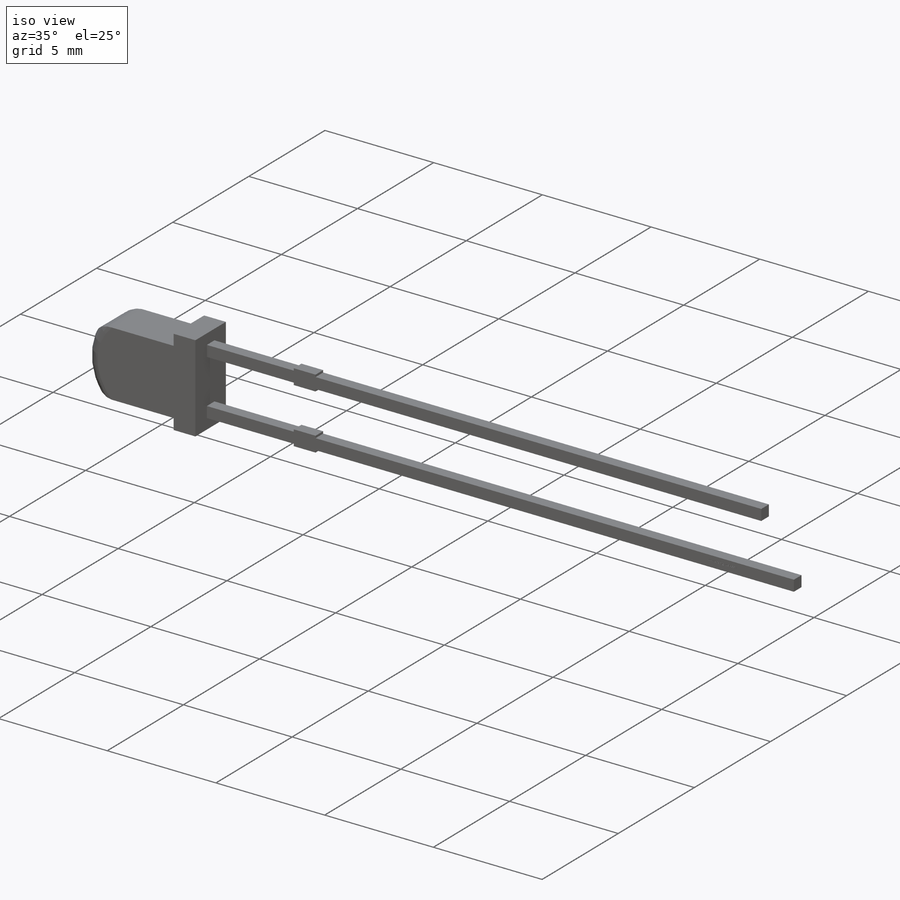
[diagram: iso view]
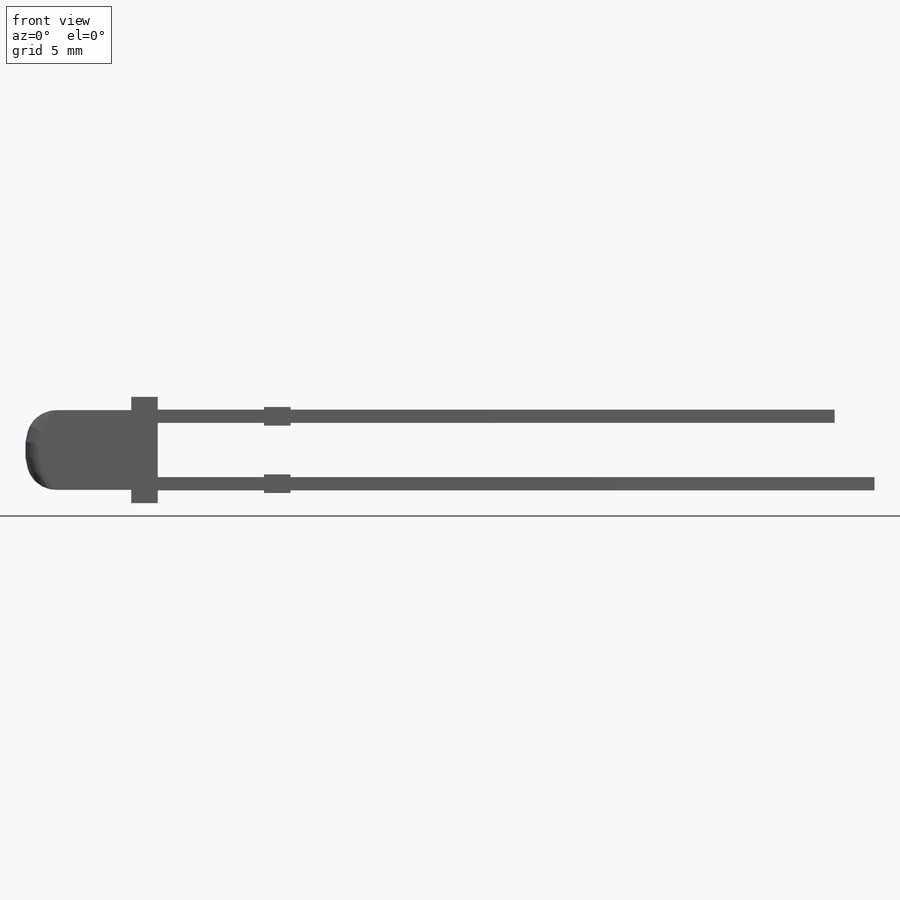
[diagram: front view]
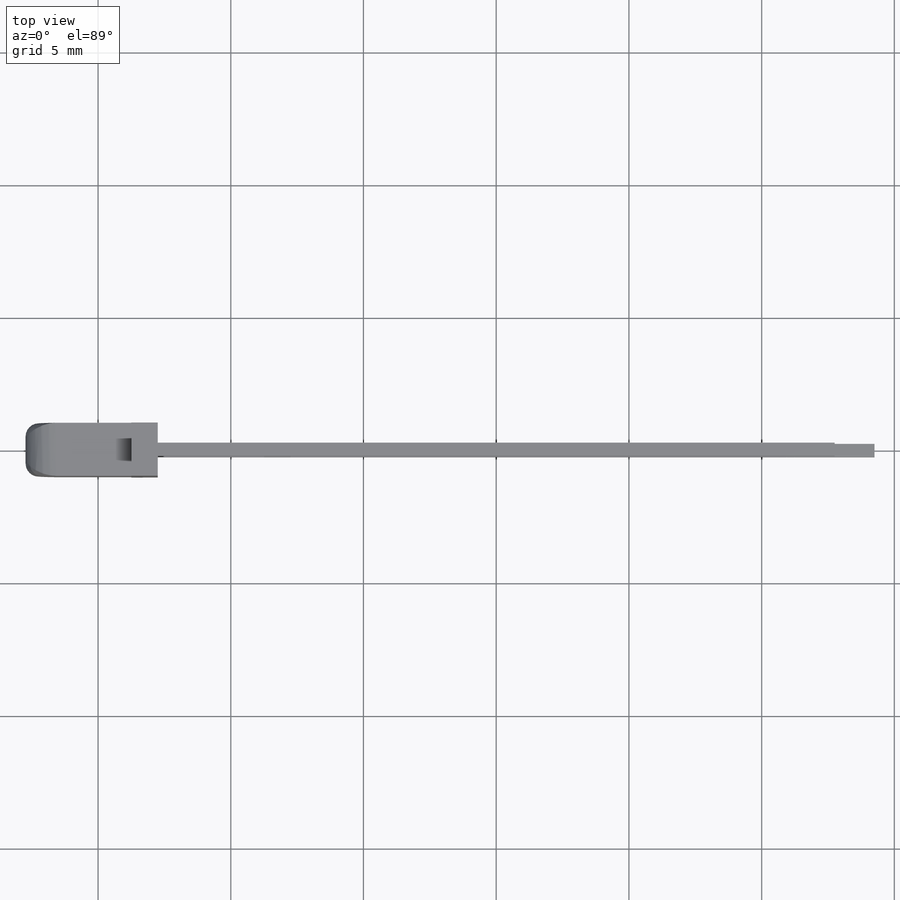
[diagram: top view]
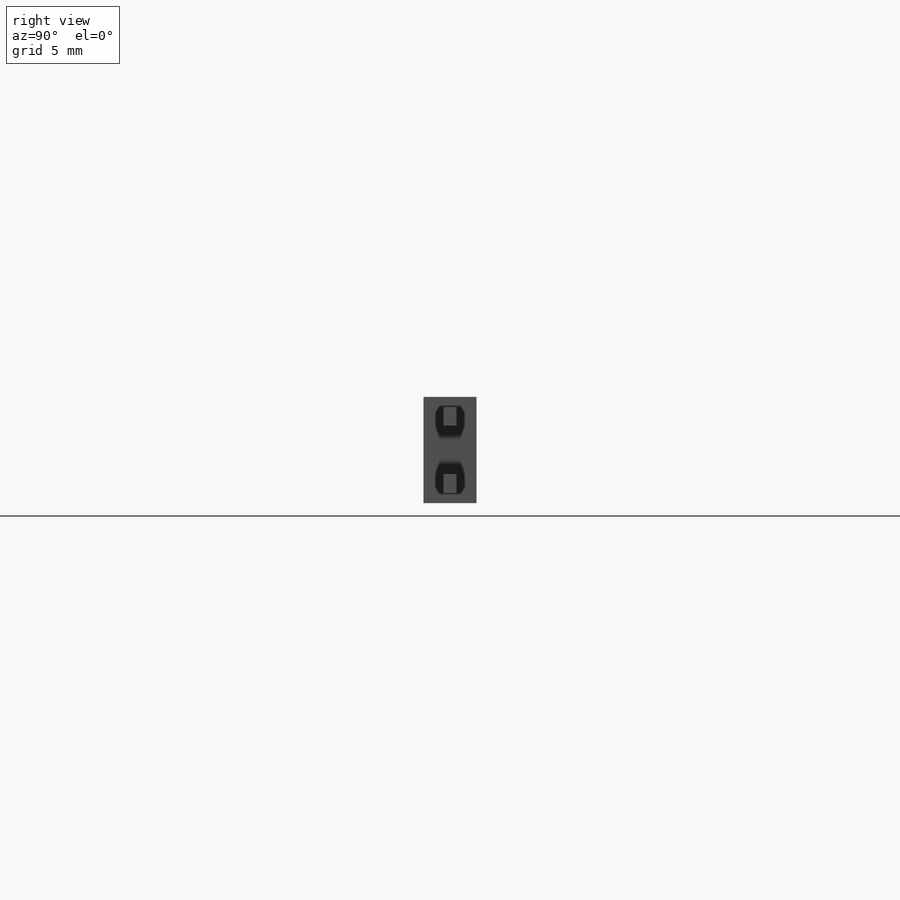
[diagram: right view]
SOLIDWORKS PART (.sldprt)
format: sldprt  version: not decoded by parser v0  size: 653,824 bytes
history: native  units: mm
features: sketch x3, extrude x2, fillet x2, material x1, cut_extrude x1 (+11 scaffold rows collapsed)
feature tree (20):
  scaffold x11  (default folders/planes/origin — collapsed)
  material  "Material <not specified>"
  sketch  "Sketch1"  dims[c1.D1=3.0mm c1.D2=7.0mm c1.D3=2.54mm c1.D4=27.0mm c1.D5=1.5mm c1.D6=0.5mm c1.D7=0.7mm c1.D8=1.0mm c1.D9=12.5mm c2.D2=6.35mm c2.D9=5.0mm c3.D2=4.5mm c3.D10=1.0mm c3.D11=4.0mm c3.D12=9.0mm c4.D10=0.65mm]
  extrude  "Extrude1"  Depth=0.5mm
  extrude  "Extrude2"  [1 undecoded]
  sketch  "Sketch1<5>"  dims[D1=2.0mm]
  sketch  "Sketch2"  dims[D1=10.0mm]
  cut_extrude  "Cut-Extrude1"  Depth=0.01mm
  fillet  "Fillet1"  Radius=0.5mm
  fillet  "Fillet2"  Radius=1.125mm
decode coverage: 7 of 8 modeling features carry decoded parameters
note: 1 parameter value undecoded
note: suppression state not decoded; provenance and decode notes live in map.json
